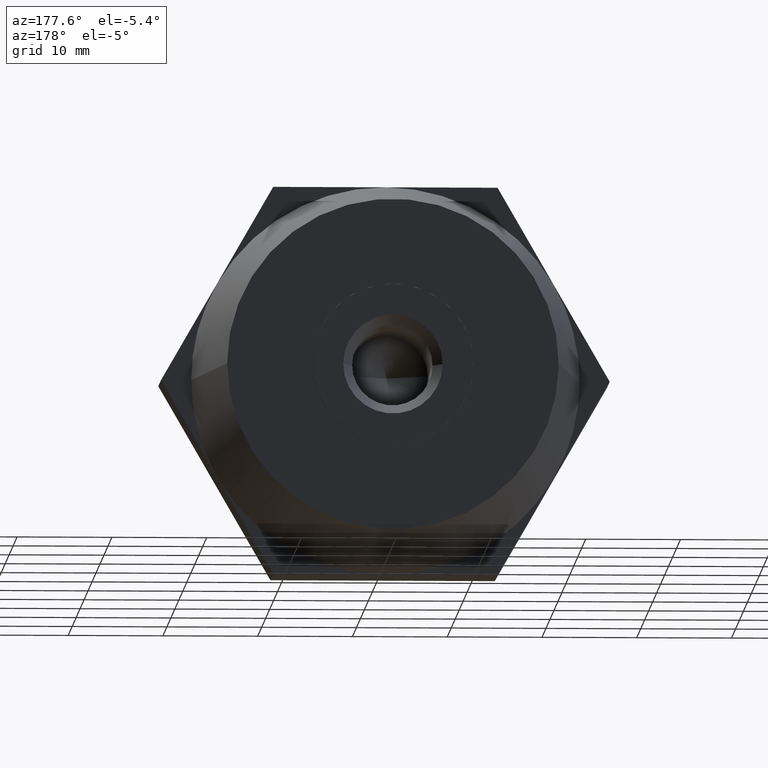
[diagram: clean part render]
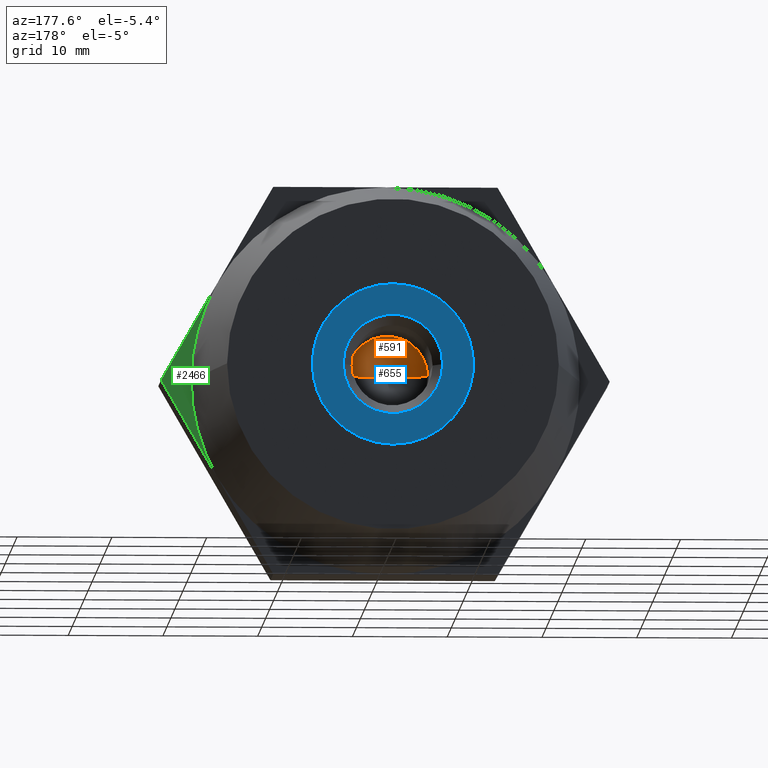
[diagram: same view with three faces highlighted in distinct colors, each labeled with its STEP entity id]
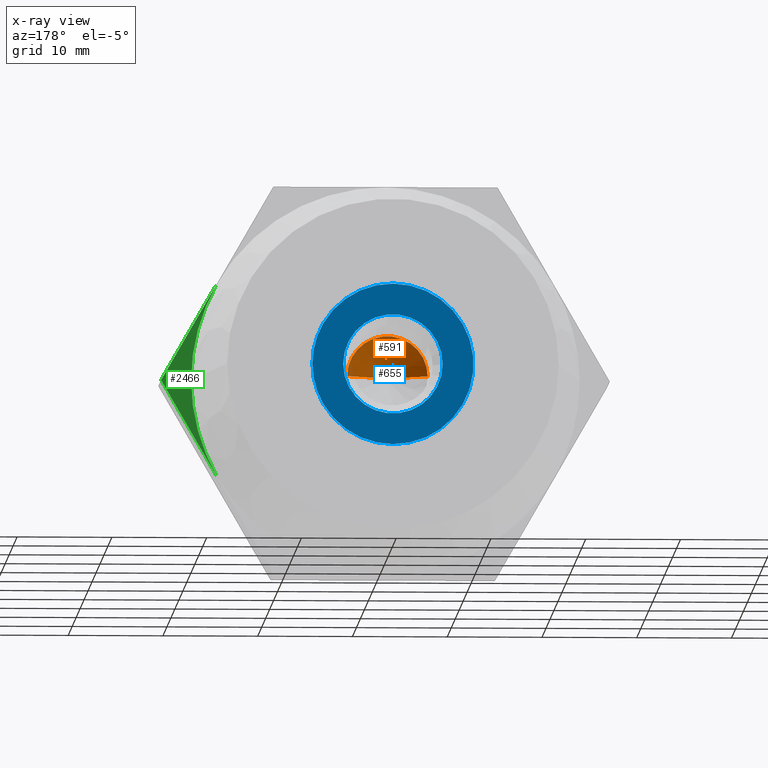
[diagram: x-ray of the same camera — body ghosted, the three highlighted faces saturated]
A machine part, auxiliary view with three faces highlighted in distinct colors.
The next image is the same camera in x-ray (body ghosted, the three faces saturated) — at least one of them is partly hidden behind the body in this view.
Their STEP definitions:

[orange] entity #591 — the highlighted conical surface has half-angle 59 deg.
#40 = LINE ( 'NONE', #3548, #1391 ) ;
#338 = EDGE_CURVE ( 'NONE', #2349, #668, #2032, .T. ) ;
#354 = CARTESIAN_POINT ( 'NONE',  ( 0.0000000000000000000, 3.050000000000000300, 0.0000000000000000000 ) ) ;
#417 = LINE ( 'NONE', #3434, #2749 ) ;
#591 = ADVANCED_FACE ( 'NONE', ( #3084 ), #3966, .F. ) ;
#668 = VERTEX_POINT ( 'NONE', #804 ) ;
#782 = AXIS2_PLACEMENT_3D ( 'NONE', #354, #1851, #3748 ) ;
#804 = CARTESIAN_POINT ( 'NONE',  ( 5.204748896376250700E-016, 3.050000000000000300, -4.250000000000000000 ) ) ;
#1380 = DIRECTION ( 'NONE',  ( 0.0000000000000000000, 1.000000000000000000, 0.0000000000000000000 ) ) ;
#1391 = VECTOR ( 'NONE', #3862, 999.9999999999998900 ) ;
#1452 = CARTESIAN_POINT ( 'NONE',  ( -4.042230298373044700E-015, 0.4963423691328700000, 0.0000000000000000000 ) ) ;
#1606 = DIRECTION ( 'NONE',  ( 0.0000000000000000000, 0.5150380749100549300, 0.8571673007021118900 ) ) ;
#1678 = DIRECTION ( 'NONE',  ( 0.0000000000000000000, 0.0000000000000000000, 1.000000000000000000 ) ) ;
#1699 = ORIENTED_EDGE ( 'NONE', *, *, #3395, .F. ) ;
#1709 = AXIS2_PLACEMENT_3D ( 'NONE', #2898, #1380, #1678 ) ;
#1851 = DIRECTION ( 'NONE',  ( 0.0000000000000000000, 1.000000000000000000, 0.0000000000000000000 ) ) ;
#2032 = CIRCLE ( 'NONE', #782, 4.250000000000000000 ) ;
#2349 = VERTEX_POINT ( 'NONE', #3545 ) ;
#2544 = ORIENTED_EDGE ( 'NONE', *, *, #3865, .T. ) ;
#2749 = VECTOR ( 'NONE', #1606, 999.9999999999998900 ) ;
#2898 = CARTESIAN_POINT ( 'NONE',  ( 0.0000000000000000000, 3.050000000000000300, 0.0000000000000000000 ) ) ;
#2998 = VERTEX_POINT ( 'NONE', #1452 ) ;
#3084 = FACE_OUTER_BOUND ( 'NONE', #3115, .T. ) ;
#3115 = EDGE_LOOP ( 'NONE', ( #1699, #2544, #3864 ) ) ;
#3395 = EDGE_CURVE ( 'NONE', #2998, #668, #40, .T. ) ;
#3434 = CARTESIAN_POINT ( 'NONE',  ( 0.0000000000000000000, 3.050000000000000300, 4.250000000000000000 ) ) ;
#3545 = CARTESIAN_POINT ( 'NONE',  ( 0.0000000000000000000, 3.050000000000000300, 4.250000000000000000 ) ) ;
#3548 = CARTESIAN_POINT ( 'NONE',  ( 5.204748896376250700E-016, 3.050000000000000300, -4.250000000000000000 ) ) ;
#3748 = DIRECTION ( 'NONE',  ( 0.0000000000000000000, 0.0000000000000000000, 1.000000000000000000 ) ) ;
#3862 = DIRECTION ( 'NONE',  ( 1.049727191138618200E-016, 0.5150380749100549300, -0.8571673007021118900 ) ) ;
#3864 = ORIENTED_EDGE ( 'NONE', *, *, #338, .T. ) ;
#3865 = EDGE_CURVE ( 'NONE', #2998, #2349, #417, .T. ) ;
#3966 = CONICAL_SURFACE ( 'NONE', #1709, 4.250000000000000000, 1.029744258676653600 ) ;

[blue] entity #655 — the highlighted planar face has unit normal (-0, 1, 0).
#14 = VERTEX_POINT ( 'NONE', #2493 ) ;
#41 = AXIS2_PLACEMENT_3D ( 'NONE', #1019, #3473, #494 ) ;
#133 = DIRECTION ( 'NONE',  ( -0.0000000000000000000, -1.000000000000000000, -0.0000000000000000000 ) ) ;
#145 = DIRECTION ( 'NONE',  ( 0.0000000000000000000, 0.0000000000000000000, 1.000000000000000000 ) ) ;
#208 = VERTEX_POINT ( 'NONE', #2696 ) ;
#409 = EDGE_CURVE ( 'NONE', #802, #2111, #3416, .T. ) ;
#494 = DIRECTION ( 'NONE',  ( 0.0000000000000000000, 0.0000000000000000000, 1.000000000000000000 ) ) ;
#526 = DIRECTION ( 'NONE',  ( 0.0000000000000000000, 0.0000000000000000000, 1.000000000000000000 ) ) ;
#527 = ORIENTED_EDGE ( 'NONE', *, *, #3431, .F. ) ;
#536 = CIRCLE ( 'NONE', #990, 8.500000000000000000 ) ;
#637 = FACE_OUTER_BOUND ( 'NONE', #3530, .T. ) ;
#649 = CARTESIAN_POINT ( 'NONE',  ( 6.429395695523604200E-016, 17.00000000000000000, -5.250000000000000000 ) ) ;
#655 = ADVANCED_FACE ( 'NONE', ( #637, #3768 ), #3606, .T. ) ;
#662 = EDGE_CURVE ( 'NONE', #3607, #208, #2943, .T. ) ;
#665 = DIRECTION ( 'NONE',  ( -0.0000000000000000000, -1.000000000000000000, -0.0000000000000000000 ) ) ;
#667 = CIRCLE ( 'NONE', #2530, 5.250000000000000000 ) ;
#720 = VERTEX_POINT ( 'NONE', #3684 ) ;
#802 = VERTEX_POINT ( 'NONE', #1537 ) ;
#851 = CARTESIAN_POINT ( 'NONE',  ( 0.0000000000000000000, 17.00000000000000000, 0.0000000000000000000 ) ) ;
#871 = ORIENTED_EDGE ( 'NONE', *, *, #662, .F. ) ;
#964 = CIRCLE ( 'NONE', #3967, 8.500000000000000000 ) ;
#987 = DIRECTION ( 'NONE',  ( -0.0000000000000000000, -1.000000000000000000, -0.0000000000000000000 ) ) ;
#990 = AXIS2_PLACEMENT_3D ( 'NONE', #3400, #665, #2461 ) ;
#1019 = CARTESIAN_POINT ( 'NONE',  ( 0.0000000000000000000, 17.00000000000000000, 0.0000000000000000000 ) ) ;
#1096 = CARTESIAN_POINT ( 'NONE',  ( 0.0000000000000000000, 17.00000000000000000, 0.0000000000000000000 ) ) ;
#1105 = AXIS2_PLACEMENT_3D ( 'NONE', #3011, #1488, #2633 ) ;
#1343 = EDGE_CURVE ( 'NONE', #14, #1771, #2108, .T. ) ;
#1351 = AXIS2_PLACEMENT_3D ( 'NONE', #2222, #3469, #1382 ) ;
#1359 = ORIENTED_EDGE ( 'NONE', *, *, #1343, .F. ) ;
#1372 = ORIENTED_EDGE ( 'NONE', *, *, #3078, .F. ) ;
#1382 = DIRECTION ( 'NONE',  ( 3.552713678800500900E-015, 0.0000000000000000000, 1.000000000000000000 ) ) ;
#1478 = CIRCLE ( 'NONE', #2612, 8.500000000000000000 ) ;
#1488 = DIRECTION ( 'NONE',  ( 0.0000000000000000000, 1.000000000000000000, 0.0000000000000000000 ) ) ;
#1537 = CARTESIAN_POINT ( 'NONE',  ( 0.0000000000000000000, 17.00000000000000000, -8.500000000000001800 ) ) ;
#1608 = CARTESIAN_POINT ( 'NONE',  ( -4.250000000000000000, 17.00000000000000000, -7.361215932167730200 ) ) ;
#1771 = VERTEX_POINT ( 'NONE', #1608 ) ;
#1910 = DIRECTION ( 'NONE',  ( -0.0000000000000000000, -1.000000000000000000, -0.0000000000000000000 ) ) ;
#1955 = AXIS2_PLACEMENT_3D ( 'NONE', #3772, #987, #2529 ) ;
#2010 = ORIENTED_EDGE ( 'NONE', *, *, #3920, .F. ) ;
#2108 = CIRCLE ( 'NONE', #2435, 8.500000000000000000 ) ;
#2111 = VERTEX_POINT ( 'NONE', #2820 ) ;
#2164 = EDGE_CURVE ( 'NONE', #2111, #720, #964, .T. ) ;
#2222 = CARTESIAN_POINT ( 'NONE',  ( 0.0000000000000000000, 17.00000000000000000, 0.0000000000000000000 ) ) ;
#2230 = CARTESIAN_POINT ( 'NONE',  ( 0.0000000000000000000, 17.00000000000000000, 0.0000000000000000000 ) ) ;
#2271 = DIRECTION ( 'NONE',  ( 0.0000000000000000000, 1.000000000000000000, 0.0000000000000000000 ) ) ;
#2292 = CARTESIAN_POINT ( 'NONE',  ( 0.0000000000000000000, 17.00000000000000000, 0.0000000000000000000 ) ) ;
#2377 = ORIENTED_EDGE ( 'NONE', *, *, #2164, .F. ) ;
#2390 = VERTEX_POINT ( 'NONE', #3196 ) ;
#2435 = AXIS2_PLACEMENT_3D ( 'NONE', #2292, #133, #145 ) ;
#2461 = DIRECTION ( 'NONE',  ( 2.664535259100376100E-015, 0.0000000000000000000, 1.000000000000000000 ) ) ;
#2463 = EDGE_CURVE ( 'NONE', #3102, #2390, #667, .T. ) ;
#2493 = CARTESIAN_POINT ( 'NONE',  ( -8.500000000000000000, 17.00000000000000000, 0.0000000000000000000 ) ) ;
#2508 = DIRECTION ( 'NONE',  ( -1.776356839400250500E-015, 0.0000000000000000000, 1.000000000000000000 ) ) ;
#2529 = DIRECTION ( 'NONE',  ( 0.0000000000000000000, 0.0000000000000000000, 1.000000000000000000 ) ) ;
#2530 = AXIS2_PLACEMENT_3D ( 'NONE', #1096, #2271, #3173 ) ;
#2612 = AXIS2_PLACEMENT_3D ( 'NONE', #3139, #3794, #3193 ) ;
#2633 = DIRECTION ( 'NONE',  ( 0.0000000000000000000, 0.0000000000000000000, 1.000000000000000000 ) ) ;
#2696 = CARTESIAN_POINT ( 'NONE',  ( -4.250000000000000000, 17.00000000000000000, 7.361215932167730200 ) ) ;
#2722 = AXIS2_PLACEMENT_3D ( 'NONE', #851, #3907, #526 ) ;
#2820 = CARTESIAN_POINT ( 'NONE',  ( 4.250000000000000000, 17.00000000000000000, -7.361215932167730200 ) ) ;
#2943 = CIRCLE ( 'NONE', #2722, 8.500000000000000000 ) ;
#3011 = CARTESIAN_POINT ( 'NONE',  ( 0.0000000000000000000, 17.00000000000000000, 0.0000000000000000000 ) ) ;
#3078 = EDGE_CURVE ( 'NONE', #1771, #802, #536, .T. ) ;
#3102 = VERTEX_POINT ( 'NONE', #649 ) ;
#3139 = CARTESIAN_POINT ( 'NONE',  ( 0.0000000000000000000, 17.00000000000000000, 0.0000000000000000000 ) ) ;
#3173 = DIRECTION ( 'NONE',  ( 0.0000000000000000000, 0.0000000000000000000, 1.000000000000000000 ) ) ;
#3193 = DIRECTION ( 'NONE',  ( 0.0000000000000000000, 0.0000000000000000000, 1.000000000000000000 ) ) ;
#3196 = CARTESIAN_POINT ( 'NONE',  ( 0.0000000000000000000, 17.00000000000000000, 5.250000000000000000 ) ) ;
#3381 = CIRCLE ( 'NONE', #1351, 8.500000000000000000 ) ;
#3400 = CARTESIAN_POINT ( 'NONE',  ( 0.0000000000000000000, 17.00000000000000000, 0.0000000000000000000 ) ) ;
#3416 = CIRCLE ( 'NONE', #1955, 8.500000000000000000 ) ;
#3428 = CIRCLE ( 'NONE', #41, 5.250000000000000000 ) ;
#3431 = EDGE_CURVE ( 'NONE', #2390, #3102, #3428, .T. ) ;
#3469 = DIRECTION ( 'NONE',  ( -0.0000000000000000000, -1.000000000000000000, -0.0000000000000000000 ) ) ;
#3473 = DIRECTION ( 'NONE',  ( 0.0000000000000000000, 1.000000000000000000, 0.0000000000000000000 ) ) ;
#3530 = EDGE_LOOP ( 'NONE', ( #2010, #871, #3594, #2377, #3804, #1372, #1359 ) ) ;
#3594 = ORIENTED_EDGE ( 'NONE', *, *, #3942, .F. ) ;
#3606 = PLANE ( 'NONE',  #1105 ) ;
#3607 = VERTEX_POINT ( 'NONE', #3613 ) ;
#3613 = CARTESIAN_POINT ( 'NONE',  ( 4.250000000000000000, 17.00000000000000000, 7.361215932167730200 ) ) ;
#3676 = ORIENTED_EDGE ( 'NONE', *, *, #2463, .F. ) ;
#3684 = CARTESIAN_POINT ( 'NONE',  ( 8.500000000000000000, 17.00000000000000000, -3.004629197474319600E-015 ) ) ;
#3707 = EDGE_LOOP ( 'NONE', ( #527, #3676 ) ) ;
#3768 = FACE_BOUND ( 'NONE', #3707, .T. ) ;
#3772 = CARTESIAN_POINT ( 'NONE',  ( 0.0000000000000000000, 17.00000000000000000, 0.0000000000000000000 ) ) ;
#3794 = DIRECTION ( 'NONE',  ( -0.0000000000000000000, -1.000000000000000000, -0.0000000000000000000 ) ) ;
#3804 = ORIENTED_EDGE ( 'NONE', *, *, #409, .F. ) ;
#3907 = DIRECTION ( 'NONE',  ( -0.0000000000000000000, -1.000000000000000000, -0.0000000000000000000 ) ) ;
#3920 = EDGE_CURVE ( 'NONE', #208, #14, #1478, .T. ) ;
#3942 = EDGE_CURVE ( 'NONE', #720, #3607, #3381, .T. ) ;
#3967 = AXIS2_PLACEMENT_3D ( 'NONE', #2230, #1910, #2508 ) ;

[green] entity #2466 — the highlighted planar face has unit normal (0, 1, 0).
#6 = EDGE_CURVE ( 'NONE', #2828, #1871, #3420, .T. ) ;
#150 = VECTOR ( 'NONE', #2168, 1000.000000000000000 ) ;
#333 = CARTESIAN_POINT ( 'NONE',  ( 2.326828918379969800E-015, 3.500000000000000000, 0.0000000000000000000 ) ) ;
#344 = DIRECTION ( 'NONE',  ( -1.000000000000000000, -1.269309860470834500E-016, 0.0000000000000000000 ) ) ;
#382 = ORIENTED_EDGE ( 'NONE', *, *, #3702, .F. ) ;
#569 = DIRECTION ( 'NONE',  ( 0.4999999999999998900, 0.0000000000000000000, -0.8660254037844387100 ) ) ;
#701 = AXIS2_PLACEMENT_3D ( 'NONE', #333, #3671, #344 ) ;
#718 = EDGE_LOOP ( 'NONE', ( #382, #2636, #1855, #2430 ) ) ;
#795 = CARTESIAN_POINT ( 'NONE',  ( 23.67136103677464800, 3.500000000000000000, -6.903896913073319100E-015 ) ) ;
#923 = DIRECTION ( 'NONE',  ( -1.224646799147353900E-016, 1.000000000000000000, 0.0000000000000000000 ) ) ;
#1035 = VERTEX_POINT ( 'NONE', #3487 ) ;
#1062 = CARTESIAN_POINT ( 'NONE',  ( 17.75352077758099900, 3.500000000000000000, -10.25000000000000000 ) ) ;
#1197 = DIRECTION ( 'NONE',  ( -1.000000000000000000, -1.269309860470834500E-016, 0.0000000000000000000 ) ) ;
#1408 = FACE_OUTER_BOUND ( 'NONE', #718, .T. ) ;
#1458 = VERTEX_POINT ( 'NONE', #1062 ) ;
#1569 = CARTESIAN_POINT ( 'NONE',  ( 17.75352077758099900, 3.500000000000000000, 10.25000000000000000 ) ) ;
#1724 = DIRECTION ( 'NONE',  ( 0.0000000000000000000, 0.0000000000000000000, 1.000000000000000000 ) ) ;
#1795 = VECTOR ( 'NONE', #569, 1000.000000000000000 ) ;
#1825 = LINE ( 'NONE', #2768, #150 ) ;
#1829 = CARTESIAN_POINT ( 'NONE',  ( 2.326828918379969800E-015, 3.500000000000000000, 0.0000000000000000000 ) ) ;
#1855 = ORIENTED_EDGE ( 'NONE', *, *, #3083, .T. ) ;
#1871 = VERTEX_POINT ( 'NONE', #795 ) ;
#2048 = DIRECTION ( 'NONE',  ( 0.0000000000000000000, 1.000000000000000000, 0.0000000000000000000 ) ) ;
#2168 = DIRECTION ( 'NONE',  ( -0.4999999999999998900, 0.0000000000000000000, -0.8660254037844387100 ) ) ;
#2339 = AXIS2_PLACEMENT_3D ( 'NONE', #3560, #2048, #1724 ) ;
#2430 = ORIENTED_EDGE ( 'NONE', *, *, #2811, .F. ) ;
#2466 = ADVANCED_FACE ( 'NONE', ( #1408 ), #3652, .T. ) ;
#2636 = ORIENTED_EDGE ( 'NONE', *, *, #6, .T. ) ;
#2768 = CARTESIAN_POINT ( 'NONE',  ( 23.67136103677464800, 3.500000000000000000, -6.903896913073319100E-015 ) ) ;
#2811 = EDGE_CURVE ( 'NONE', #1035, #1458, #3617, .T. ) ;
#2828 = VERTEX_POINT ( 'NONE', #1569 ) ;
#3083 = EDGE_CURVE ( 'NONE', #1871, #1458, #1825, .T. ) ;
#3323 = AXIS2_PLACEMENT_3D ( 'NONE', #1829, #923, #1197 ) ;
#3335 = CARTESIAN_POINT ( 'NONE',  ( 11.83568051838732100, 3.500000000000000000, 20.50000000000000000 ) ) ;
#3420 = LINE ( 'NONE', #3335, #1795 ) ;
#3487 = CARTESIAN_POINT ( 'NONE',  ( 20.49999999999999300, 3.500000000000003600, 0.0000000000000000000 ) ) ;
#3560 = CARTESIAN_POINT ( 'NONE',  ( 0.0000000000000000000, 3.500000000000000000, 0.0000000000000000000 ) ) ;
#3617 = CIRCLE ( 'NONE', #701, 20.50000000000000000 ) ;
#3652 = PLANE ( 'NONE',  #2339 ) ;
#3671 = DIRECTION ( 'NONE',  ( -1.224646799147353900E-016, 1.000000000000000000, 0.0000000000000000000 ) ) ;
#3702 = EDGE_CURVE ( 'NONE', #2828, #1035, #3778, .T. ) ;
#3778 = CIRCLE ( 'NONE', #3323, 20.50000000000000000 ) ;